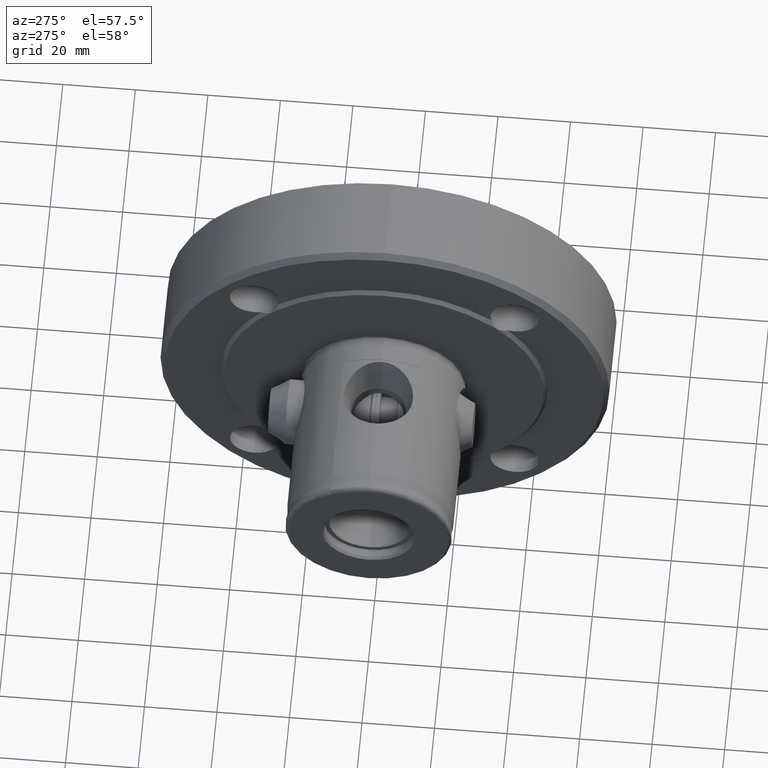
[diagram: clean part render]
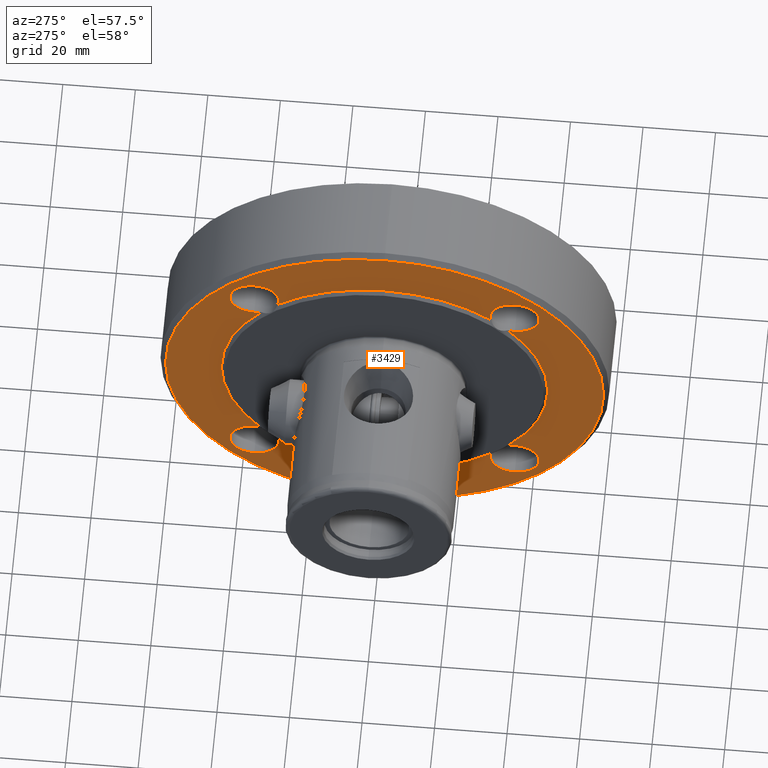
[diagram: same view with one face highlighted and labeled with its STEP entity id]
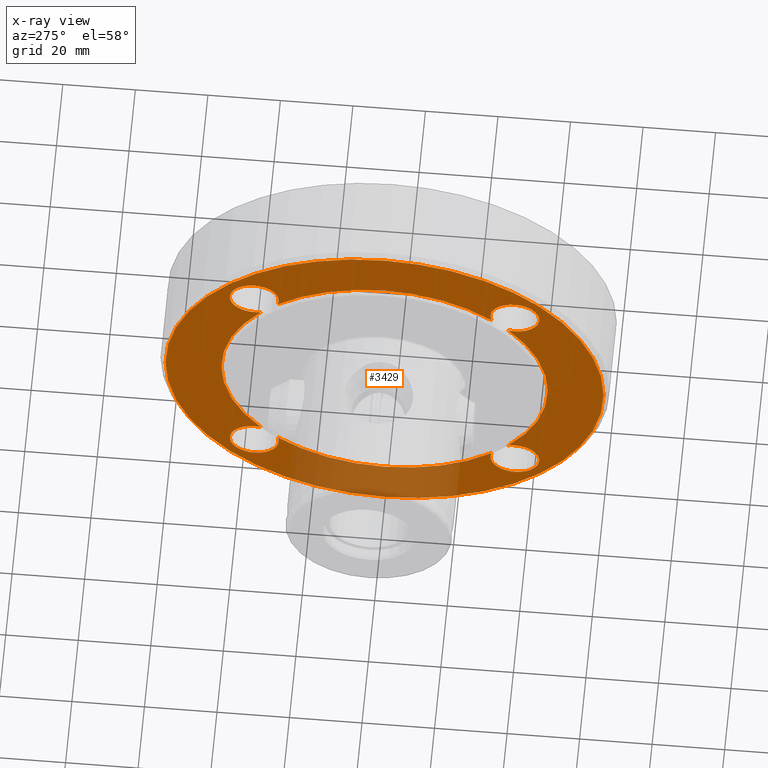
[diagram: x-ray of the same camera — body ghosted, the highlighted face saturated]
A machine part, auxiliary view. The second image highlights one B-rep face of the part: STEP entity #3429.
The next image is the same camera in x-ray: the body ghosted, the highlighted face saturated — about 16% of this face is hidden behind the body in this view.
In plain terms, the highlighted planar face has unit normal (1, 0, 0).
Its self-contained STEP definition (entity closure, byte-faithful):
#45 = EDGE_CURVE ( 'NONE', #4454, #4421, #3850, .T. ) ;
#89 = AXIS2_PLACEMENT_3D ( 'NONE', #2659, #2660, #2703 ) ;
#214 = AXIS2_PLACEMENT_3D ( 'NONE', #3463, #3499, #3505 ) ;
#279 = AXIS2_PLACEMENT_3D ( 'NONE', #4757, #4755, #4754 ) ;
#283 = AXIS2_PLACEMENT_3D ( 'NONE', #4759, #4751, #4750 ) ;
#287 = AXIS2_PLACEMENT_3D ( 'NONE', #3164, #3175, #3182 ) ;
#288 = AXIS2_PLACEMENT_3D ( 'NONE', #3016, #3008, #3004 ) ;
#290 = AXIS2_PLACEMENT_3D ( 'NONE', #3088, #3075, #3073 ) ;
#293 = AXIS2_PLACEMENT_3D ( 'NONE', #3031, #2959, #2953 ) ;
#315 = AXIS2_PLACEMENT_3D ( 'NONE', #3049, #3047, #3046 ) ;
#618 = CARTESIAN_POINT ( 'NONE',  ( 50.99999999999999300, 0.0000000000000000000, 0.0000000000000000000 ) ) ;
#627 = DIRECTION ( 'NONE',  ( 1.000000000000000000, 0.0000000000000000000, 0.0000000000000000000 ) ) ;
#628 = DIRECTION ( 'NONE',  ( 0.0000000000000000000, 0.0000000000000000000, -1.000000000000000000 ) ) ;
#697 = CARTESIAN_POINT ( 'NONE',  ( 50.99999999999999300, 0.0000000000000000000, 0.0000000000000000000 ) ) ;
#699 = DIRECTION ( 'NONE',  ( 1.000000000000000000, 0.0000000000000000000, 0.0000000000000000000 ) ) ;
#700 = DIRECTION ( 'NONE',  ( 0.0000000000000000000, 0.0000000000000000000, -1.000000000000000000 ) ) ;
#708 = CARTESIAN_POINT ( 'NONE',  ( 50.99999999999999300, 0.0000000000000000000, 0.0000000000000000000 ) ) ;
#710 = DIRECTION ( 'NONE',  ( 1.000000000000000000, 0.0000000000000000000, 0.0000000000000000000 ) ) ;
#711 = DIRECTION ( 'NONE',  ( 0.0000000000000000000, 0.0000000000000000000, -1.000000000000000000 ) ) ;
#869 = CARTESIAN_POINT ( 'NONE',  ( 50.99999999999999300, 0.0000000000000000000, 0.0000000000000000000 ) ) ;
#882 = CARTESIAN_POINT ( 'NONE',  ( 50.99999999999999300, 0.0000000000000000000, 0.0000000000000000000 ) ) ;
#893 = DIRECTION ( 'NONE',  ( 1.000000000000000000, 0.0000000000000000000, 0.0000000000000000000 ) ) ;
#894 = DIRECTION ( 'NONE',  ( 0.0000000000000000000, 0.0000000000000000000, -1.000000000000000000 ) ) ;
#895 = DIRECTION ( 'NONE',  ( 1.000000000000000000, 0.0000000000000000000, 0.0000000000000000000 ) ) ;
#896 = DIRECTION ( 'NONE',  ( 0.0000000000000000000, 0.0000000000000000000, -1.000000000000000000 ) ) ;
#1127 = CARTESIAN_POINT ( 'NONE',  ( 50.99999999999999300, 0.0000000000000000000, 0.0000000000000000000 ) ) ;
#1130 = CARTESIAN_POINT ( 'NONE',  ( 50.99999999999999300, 35.92102448427681300, 35.92102448427642300 ) ) ;
#1134 = DIRECTION ( 'NONE',  ( -1.000000000000000000, -0.0000000000000000000, -0.0000000000000000000 ) ) ;
#1135 = DIRECTION ( 'NONE',  ( 0.0000000000000000000, 0.0000000000000000000, 1.000000000000000000 ) ) ;
#1137 = DIRECTION ( 'NONE',  ( 1.000000000000000000, 0.0000000000000000000, 0.0000000000000000000 ) ) ;
#1138 = DIRECTION ( 'NONE',  ( 0.0000000000000000000, 0.0000000000000000000, -1.000000000000000000 ) ) ;
#1151 = CARTESIAN_POINT ( 'NONE',  ( 50.99999999999999300, -35.92102448427681300, -35.92102448427639400 ) ) ;
#1154 = CARTESIAN_POINT ( 'NONE',  ( 50.99999999999999300, -35.92102448427681300, -35.92102448427639400 ) ) ;
#1157 = CARTESIAN_POINT ( 'NONE',  ( 50.99999999999999300, -35.92102448427642300, 35.92102448427679200 ) ) ;
#1158 = DIRECTION ( 'NONE',  ( 1.000000000000000000, 0.0000000000000000000, 0.0000000000000000000 ) ) ;
#1159 = DIRECTION ( 'NONE',  ( 0.0000000000000000000, 0.0000000000000000000, -1.000000000000000000 ) ) ;
#1160 = CARTESIAN_POINT ( 'NONE',  ( 50.99999999999999300, -35.92102448427642300, 35.92102448427679200 ) ) ;
#1161 = DIRECTION ( 'NONE',  ( 1.000000000000000000, 0.0000000000000000000, 0.0000000000000000000 ) ) ;
#1162 = DIRECTION ( 'NONE',  ( 0.0000000000000000000, 0.0000000000000000000, -1.000000000000000000 ) ) ;
#1163 = CARTESIAN_POINT ( 'NONE',  ( 50.99999999999999300, 35.92102448427641500, -35.92102448427680600 ) ) ;
#1164 = DIRECTION ( 'NONE',  ( 1.000000000000000000, 0.0000000000000000000, 0.0000000000000000000 ) ) ;
#1165 = DIRECTION ( 'NONE',  ( 0.0000000000000000000, 0.0000000000000000000, -1.000000000000000000 ) ) ;
#1167 = DIRECTION ( 'NONE',  ( 1.000000000000000000, 0.0000000000000000000, 0.0000000000000000000 ) ) ;
#1168 = DIRECTION ( 'NONE',  ( 0.0000000000000000000, 0.0000000000000000000, -1.000000000000000000 ) ) ;
#1170 = DIRECTION ( 'NONE',  ( 1.000000000000000000, 0.0000000000000000000, 0.0000000000000000000 ) ) ;
#1171 = DIRECTION ( 'NONE',  ( 0.0000000000000000000, 0.0000000000000000000, -1.000000000000000000 ) ) ;
#1751 = CIRCLE ( 'NONE', #315, 60.39999999999999900 ) ;
#1794 = CIRCLE ( 'NONE', #4489, 44.99999999999999300 ) ;
#1803 = CIRCLE ( 'NONE', #4491, 44.99999999999999300 ) ;
#1808 = CIRCLE ( 'NONE', #4492, 44.99999999999999300 ) ;
#1855 = CIRCLE ( 'NONE', #4511, 44.99999999999999300 ) ;
#1857 = CIRCLE ( 'NONE', #4512, 44.99999999999999300 ) ;
#1893 = CIRCLE ( 'NONE', #4537, 60.39999999999999900 ) ;
#1894 = CIRCLE ( 'NONE', #4538, 6.746239999999994000 ) ;
#1901 = CIRCLE ( 'NONE', #4545, 6.746239999999986900 ) ;
#1902 = CIRCLE ( 'NONE', #4546, 6.746239999999986900 ) ;
#1903 = CIRCLE ( 'NONE', #4547, 6.746239999999990500 ) ;
#1904 = CIRCLE ( 'NONE', #4548, 6.746239999999990500 ) ;
#1905 = CIRCLE ( 'NONE', #4549, 6.746239999999994000 ) ;
#2659 = CARTESIAN_POINT ( 'NONE',  ( 50.99999999999999300, 0.0000000000000000000, 0.0000000000000000000 ) ) ;
#2660 = DIRECTION ( 'NONE',  ( 1.000000000000000000, 0.0000000000000000000, 0.0000000000000000000 ) ) ;
#2703 = DIRECTION ( 'NONE',  ( 0.0000000000000000000, 0.0000000000000000000, -1.000000000000000000 ) ) ;
#2800 = ORIENTED_EDGE ( 'NONE', *, *, #5271, .T. ) ;
#2802 = ORIENTED_EDGE ( 'NONE', *, *, #5082, .T. ) ;
#2803 = ORIENTED_EDGE ( 'NONE', *, *, #5260, .T. ) ;
#2833 = ORIENTED_EDGE ( 'NONE', *, *, #5259, .T. ) ;
#2834 = ORIENTED_EDGE ( 'NONE', *, *, #5129, .T. ) ;
#2835 = ORIENTED_EDGE ( 'NONE', *, *, #45, .T. ) ;
#2836 = ORIENTED_EDGE ( 'NONE', *, *, #5177, .T. ) ;
#2837 = ORIENTED_EDGE ( 'NONE', *, *, #5057, .T. ) ;
#2838 = ORIENTED_EDGE ( 'NONE', *, *, #5220, .T. ) ;
#2839 = ORIENTED_EDGE ( 'NONE', *, *, #5269, .T. ) ;
#2840 = ORIENTED_EDGE ( 'NONE', *, *, #5173, .T. ) ;
#2841 = ORIENTED_EDGE ( 'NONE', *, *, #5068, .T. ) ;
#2842 = ORIENTED_EDGE ( 'NONE', *, *, #5080, .T. ) ;
#2843 = ORIENTED_EDGE ( 'NONE', *, *, #5219, .T. ) ;
#2844 = ORIENTED_EDGE ( 'NONE', *, *, #5270, .T. ) ;
#2845 = ORIENTED_EDGE ( 'NONE', *, *, #5165, .T. ) ;
#2846 = ORIENTED_EDGE ( 'NONE', *, *, #5075, .T. ) ;
#2847 = ORIENTED_EDGE ( 'NONE', *, *, #5268, .T. ) ;
#2848 = ORIENTED_EDGE ( 'NONE', *, *, #5267, .T. ) ;
#2849 = ORIENTED_EDGE ( 'NONE', *, *, #5059, .T. ) ;
#2953 = DIRECTION ( 'NONE',  ( 0.0000000000000000000, 0.0000000000000000000, -1.000000000000000000 ) ) ;
#2959 = DIRECTION ( 'NONE',  ( 1.000000000000000000, 0.0000000000000000000, 0.0000000000000000000 ) ) ;
#3004 = DIRECTION ( 'NONE',  ( 0.0000000000000000000, 0.0000000000000000000, -1.000000000000000000 ) ) ;
#3008 = DIRECTION ( 'NONE',  ( 1.000000000000000000, 0.0000000000000000000, 0.0000000000000000000 ) ) ;
#3016 = CARTESIAN_POINT ( 'NONE',  ( 50.99999999999999300, 35.92102448427681300, 35.92102448427642300 ) ) ;
#3031 = CARTESIAN_POINT ( 'NONE',  ( 50.99999999999999300, 35.92102448427681300, 35.92102448427642300 ) ) ;
#3046 = DIRECTION ( 'NONE',  ( 0.0000000000000000000, 0.0000000000000000000, 1.000000000000000000 ) ) ;
#3047 = DIRECTION ( 'NONE',  ( -1.000000000000000000, -0.0000000000000000000, -0.0000000000000000000 ) ) ;
#3049 = CARTESIAN_POINT ( 'NONE',  ( 50.99999999999999300, 0.0000000000000000000, 0.0000000000000000000 ) ) ;
#3073 = DIRECTION ( 'NONE',  ( 0.0000000000000000000, 0.0000000000000000000, -1.000000000000000000 ) ) ;
#3075 = DIRECTION ( 'NONE',  ( 1.000000000000000000, 0.0000000000000000000, 0.0000000000000000000 ) ) ;
#3088 = CARTESIAN_POINT ( 'NONE',  ( 50.99999999999999300, -35.92102448427642300, 35.92102448427679200 ) ) ;
#3164 = CARTESIAN_POINT ( 'NONE',  ( 50.99999999999999300, -35.92102448427681300, -35.92102448427639400 ) ) ;
#3175 = DIRECTION ( 'NONE',  ( 1.000000000000000000, 0.0000000000000000000, 0.0000000000000000000 ) ) ;
#3182 = DIRECTION ( 'NONE',  ( 0.0000000000000000000, 0.0000000000000000000, -1.000000000000000000 ) ) ;
#3429 = ADVANCED_FACE ( 'NONE', ( #4129, #4130 ), #3488, .F. ) ;
#3463 = CARTESIAN_POINT ( 'NONE',  ( 50.99999999999999300, 60.39999999999999900, 0.0000000000000000000 ) ) ;
#3488 = PLANE ( 'NONE',  #214 ) ;
#3499 = DIRECTION ( 'NONE',  ( 1.000000000000000000, 0.0000000000000000000, 0.0000000000000000000 ) ) ;
#3505 = DIRECTION ( 'NONE',  ( 0.0000000000000000000, 0.0000000000000000000, -1.000000000000000000 ) ) ;
#3777 = EDGE_LOOP ( 'NONE', ( #2833, #2834 ) ) ;
#3785 = EDGE_LOOP ( 'NONE', ( #2835, #2836, #2837, #2800, #2849, #2840, #2842, #2803, #2802, #2845, #2838, #2839, #2846, #2844, #2843, #2848, #2841, #2847 ) ) ;
#3850 = CIRCLE ( 'NONE', #89, 44.99999999999999300 ) ;
#4129 = FACE_OUTER_BOUND ( 'NONE', #3777, .T. ) ;
#4130 = FACE_BOUND ( 'NONE', #3785, .T. ) ;
#4245 = CIRCLE ( 'NONE', #279, 6.746239999999994000 ) ;
#4247 = CIRCLE ( 'NONE', #283, 6.746239999999994000 ) ;
#4260 = CIRCLE ( 'NONE', #287, 6.746239999999986900 ) ;
#4271 = CIRCLE ( 'NONE', #290, 6.746239999999990500 ) ;
#4279 = CIRCLE ( 'NONE', #288, 6.746239999999994000 ) ;
#4281 = CIRCLE ( 'NONE', #293, 6.746239999999994000 ) ;
#4368 = VERTEX_POINT ( 'NONE', #4956 ) ;
#4369 = VERTEX_POINT ( 'NONE', #4961 ) ;
#4370 = VERTEX_POINT ( 'NONE', #4964 ) ;
#4371 = VERTEX_POINT ( 'NONE', #4962 ) ;
#4376 = VERTEX_POINT ( 'NONE', #4919 ) ;
#4377 = VERTEX_POINT ( 'NONE', #4924 ) ;
#4382 = VERTEX_POINT ( 'NONE', #4926 ) ;
#4383 = VERTEX_POINT ( 'NONE', #4929 ) ;
#4388 = VERTEX_POINT ( 'NONE', #4966 ) ;
#4389 = VERTEX_POINT ( 'NONE', #4960 ) ;
#4390 = VERTEX_POINT ( 'NONE', #4965 ) ;
#4391 = VERTEX_POINT ( 'NONE', #4969 ) ;
#4405 = VERTEX_POINT ( 'NONE', #4886 ) ;
#4406 = VERTEX_POINT ( 'NONE', #4888 ) ;
#4420 = VERTEX_POINT ( 'NONE', #4909 ) ;
#4421 = VERTEX_POINT ( 'NONE', #4910 ) ;
#4454 = VERTEX_POINT ( 'NONE', #4963 ) ;
#4455 = VERTEX_POINT ( 'NONE', #4959 ) ;
#4456 = VERTEX_POINT ( 'NONE', #4955 ) ;
#4457 = VERTEX_POINT ( 'NONE', #4958 ) ;
#4489 = AXIS2_PLACEMENT_3D ( 'NONE', #618, #627, #628 ) ;
#4491 = AXIS2_PLACEMENT_3D ( 'NONE', #697, #699, #700 ) ;
#4492 = AXIS2_PLACEMENT_3D ( 'NONE', #708, #710, #711 ) ;
#4511 = AXIS2_PLACEMENT_3D ( 'NONE', #882, #893, #894 ) ;
#4512 = AXIS2_PLACEMENT_3D ( 'NONE', #869, #895, #896 ) ;
#4537 = AXIS2_PLACEMENT_3D ( 'NONE', #1127, #1134, #1135 ) ;
#4538 = AXIS2_PLACEMENT_3D ( 'NONE', #1130, #1137, #1138 ) ;
#4545 = AXIS2_PLACEMENT_3D ( 'NONE', #1151, #1158, #1159 ) ;
#4546 = AXIS2_PLACEMENT_3D ( 'NONE', #1154, #1161, #1162 ) ;
#4547 = AXIS2_PLACEMENT_3D ( 'NONE', #1157, #1164, #1165 ) ;
#4548 = AXIS2_PLACEMENT_3D ( 'NONE', #1160, #1167, #1168 ) ;
#4549 = AXIS2_PLACEMENT_3D ( 'NONE', #1163, #1170, #1171 ) ;
#4750 = DIRECTION ( 'NONE',  ( 0.0000000000000000000, 0.0000000000000000000, -1.000000000000000000 ) ) ;
#4751 = DIRECTION ( 'NONE',  ( 1.000000000000000000, 0.0000000000000000000, 0.0000000000000000000 ) ) ;
#4754 = DIRECTION ( 'NONE',  ( 0.0000000000000000000, 0.0000000000000000000, -1.000000000000000000 ) ) ;
#4755 = DIRECTION ( 'NONE',  ( 1.000000000000000000, 0.0000000000000000000, 0.0000000000000000000 ) ) ;
#4757 = CARTESIAN_POINT ( 'NONE',  ( 50.99999999999999300, 35.92102448427641500, -35.92102448427680600 ) ) ;
#4759 = CARTESIAN_POINT ( 'NONE',  ( 50.99999999999999300, 35.92102448427641500, -35.92102448427680600 ) ) ;
#4886 = CARTESIAN_POINT ( 'NONE',  ( 50.99999999999999300, 7.488715176786064700E-015, 60.39999999999999900 ) ) ;
#4888 = CARTESIAN_POINT ( 'NONE',  ( 50.99999999999999300, 0.0000000000000000000, -60.39999999999999900 ) ) ;
#4909 = CARTESIAN_POINT ( 'NONE',  ( 50.99999999999999300, 5.510910596163089600E-015, 45.00000000000000000 ) ) ;
#4910 = CARTESIAN_POINT ( 'NONE',  ( 50.99999999999999300, 0.0000000000000000000, -45.00000000000000000 ) ) ;
#4919 = CARTESIAN_POINT ( 'NONE',  ( 50.99999999999999300, -35.92102448427681300, -29.17478448427640100 ) ) ;
#4924 = CARTESIAN_POINT ( 'NONE',  ( 50.99999999999999300, -35.92102448427681300, -42.66726448427638000 ) ) ;
#4926 = CARTESIAN_POINT ( 'NONE',  ( 50.99999999999999300, -35.92102448427642300, 42.66726448427678500 ) ) ;
#4929 = CARTESIAN_POINT ( 'NONE',  ( 50.99999999999999300, -35.92102448427642300, 29.17478448427680600 ) ) ;
#4955 = CARTESIAN_POINT ( 'NONE',  ( 50.99999999999999300, -34.02875967504055400, 29.44560264247163100 ) ) ;
#4956 = CARTESIAN_POINT ( 'NONE',  ( 50.99999999999999300, 35.92102448427641500, -29.17478448427681700 ) ) ;
#4958 = CARTESIAN_POINT ( 'NONE',  ( 50.99999999999999300, -29.44560264247127900, 34.02875967504086000 ) ) ;
#4959 = CARTESIAN_POINT ( 'NONE',  ( 50.99999999999999300, -34.02875967504088800, -29.44560264247125800 ) ) ;
#4960 = CARTESIAN_POINT ( 'NONE',  ( 50.99999999999999300, 29.44560264247164800, 34.02875967504054700 ) ) ;
#4961 = CARTESIAN_POINT ( 'NONE',  ( 50.99999999999999300, 34.02875967504054700, -29.44560264247164800 ) ) ;
#4962 = CARTESIAN_POINT ( 'NONE',  ( 50.99999999999999300, 29.44560264247126800, -34.02875967504087400 ) ) ;
#4963 = CARTESIAN_POINT ( 'NONE',  ( 50.99999999999999300, -29.44560264247166300, -34.02875967504054000 ) ) ;
#4964 = CARTESIAN_POINT ( 'NONE',  ( 50.99999999999999300, 35.92102448427641500, -42.66726448427679900 ) ) ;
#4965 = CARTESIAN_POINT ( 'NONE',  ( 50.99999999999999300, 35.92102448427681300, 29.17478448427642600 ) ) ;
#4966 = CARTESIAN_POINT ( 'NONE',  ( 50.99999999999999300, 35.92102448427681300, 42.66726448427641600 ) ) ;
#4969 = CARTESIAN_POINT ( 'NONE',  ( 50.99999999999999300, 34.02875967504087400, 29.44560264247126800 ) ) ;
#5057 = EDGE_CURVE ( 'NONE', #4371, #4370, #4245, .T. ) ;
#5059 = EDGE_CURVE ( 'NONE', #4368, #4369, #4247, .T. ) ;
#5068 = EDGE_CURVE ( 'NONE', #4376, #4377, #4260, .T. ) ;
#5075 = EDGE_CURVE ( 'NONE', #4382, #4383, #4271, .T. ) ;
#5080 = EDGE_CURVE ( 'NONE', #4391, #4390, #4279, .T. ) ;
#5082 = EDGE_CURVE ( 'NONE', #4388, #4389, #4281, .T. ) ;
#5129 = EDGE_CURVE ( 'NONE', #4405, #4406, #1751, .T. ) ;
#5165 = EDGE_CURVE ( 'NONE', #4389, #4420, #1794, .T. ) ;
#5173 = EDGE_CURVE ( 'NONE', #4369, #4391, #1803, .T. ) ;
#5177 = EDGE_CURVE ( 'NONE', #4421, #4371, #1808, .T. ) ;
#5219 = EDGE_CURVE ( 'NONE', #4456, #4455, #1855, .T. ) ;
#5220 = EDGE_CURVE ( 'NONE', #4420, #4457, #1857, .T. ) ;
#5259 = EDGE_CURVE ( 'NONE', #4406, #4405, #1893, .T. ) ;
#5260 = EDGE_CURVE ( 'NONE', #4390, #4388, #1894, .T. ) ;
#5267 = EDGE_CURVE ( 'NONE', #4455, #4376, #1901, .T. ) ;
#5268 = EDGE_CURVE ( 'NONE', #4377, #4454, #1902, .T. ) ;
#5269 = EDGE_CURVE ( 'NONE', #4457, #4382, #1903, .T. ) ;
#5270 = EDGE_CURVE ( 'NONE', #4383, #4456, #1904, .T. ) ;
#5271 = EDGE_CURVE ( 'NONE', #4370, #4368, #1905, .T. ) ;